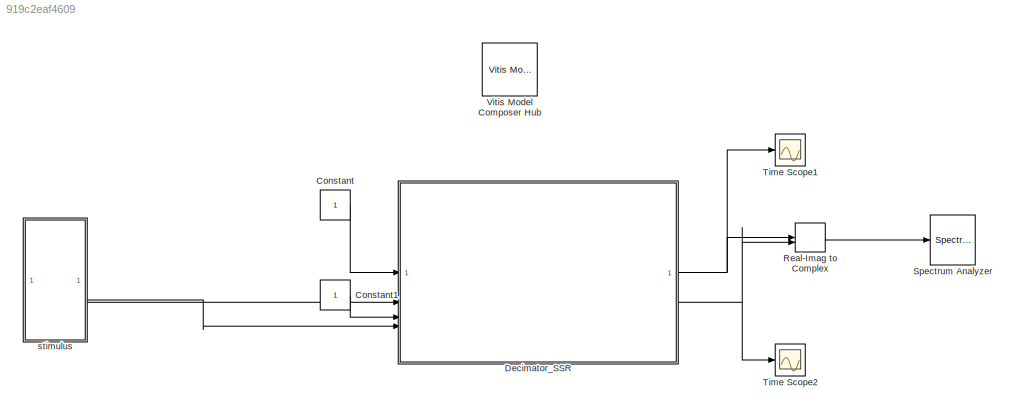
MODEL slx_919c2eaf4609
KIND model
CONFIG AbsTol = auto
CONFIG EnableMultiTasking = off
CONFIG FixedStep = auto
CONFIG MaxStep = auto
CONFIG MinStep = auto
CONFIG PreLoadFcn = startup
CONFIG RelTol = 1e-3
CONFIG SampleTimeConstraint = Unconstrained
CONFIG SolverName = VariableStepAuto
CONFIG StartTime = 0.0
CONFIG StopTime = 6000*(1/Fclk)
BLOCK [Constant] Constant
BLOCK [Constant] Constant1
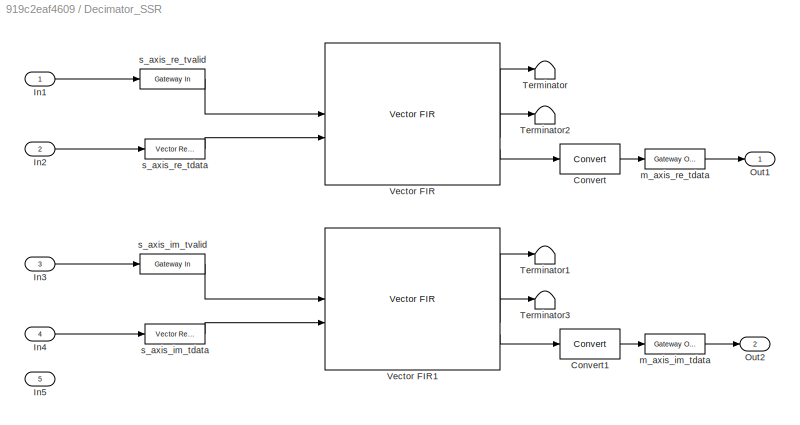
BLOCK [SubSystem] Decimator_SSR
  PortSchema = {"entries":[{"content":{"sides":[{"content":{"connectorIds":["In1","In2","In3","In4"]},"type":"ConnectorPlacement.EquallySpacedRectSide","uuid":"5b1ce47c-11b1-47c7-aaa3-19abd9a5b4e2"},{"content":{"connectorIds":["Out1","Out2"],"side":"RIGHT"},"type":"ConnectorPlacement.EquallySpacedRectSide","uuid":"3ee300bc-2b0e-4642-8b70-9f140d98776f"},{"content":{"connectorIds":["In5"],"side":"TOP"},"type":"Con...<+270ch>
BLOCK [Reference] Decimator_SSR/Convert  REF=hdlBasic/Convert
  SourceBlock = hdlBasic/Convert
  SourceType = Type Converter Block
BLOCK [Reference] Decimator_SSR/Convert1  REF=hdlBasic/Convert
  SourceBlock = hdlBasic/Convert
  SourceType = Type Converter Block
BLOCK [Inport] Decimator_SSR/In1
BLOCK [Inport] Decimator_SSR/In2
  Port = 2
BLOCK [Inport] Decimator_SSR/In3
  Port = 3
BLOCK [Inport] Decimator_SSR/In4
  Port = 4
BLOCK [Inport] Decimator_SSR/In5
  Port = 5
BLOCK [Outport] Decimator_SSR/Out1
BLOCK [Outport] Decimator_SSR/Out2
  Port = 2
BLOCK [Terminator] Decimator_SSR/Terminator
BLOCK [Terminator] Decimator_SSR/Terminator1
BLOCK [Terminator] Decimator_SSR/Terminator2
BLOCK [Terminator] Decimator_SSR/Terminator3
BLOCK [Reference] Decimator_SSR/Vector FIR  REF=hdlSSR/Vector FIR
  SourceBlock = hdlSSR/Vector FIR
  SourceType = Xilinx Vector FIR Compiler 7.2 Block
BLOCK [Reference] Decimator_SSR/Vector FIR1  REF=hdlSSR/Vector FIR
  SourceBlock = hdlSSR/Vector FIR
  SourceType = Xilinx Vector FIR Compiler 7.2 Block
BLOCK [Reference] Decimator_SSR/m_axis_im_tdata  REF=hdlBasic/Gateway Out
  SourceBlock = hdlBasic/Gateway Out
  SourceType = Gateway Out Block
BLOCK [Reference] Decimator_SSR/m_axis_re_tdata  REF=hdlBasic/Gateway Out
  SourceBlock = hdlBasic/Gateway Out
  SourceType = Gateway Out Block
BLOCK [Reference] Decimator_SSR/s_axis_im_tdata  REF=hdlSSR/Vector Real Gateway In
  SourceBlock = hdlSSR/Vector Real Gateway In
  SourceType = Xilinx Vector Gateway In Block
BLOCK [Reference] Decimator_SSR/s_axis_im_tvalid  REF=hdlBasic/Gateway In
  SourceBlock = hdlBasic/Gateway In
  SourceType = Gateway In Block
BLOCK [Reference] Decimator_SSR/s_axis_re_tdata  REF=hdlSSR/Vector Real Gateway In
  SourceBlock = hdlSSR/Vector Real Gateway In
  SourceType = Xilinx Vector Gateway In Block
BLOCK [Reference] Decimator_SSR/s_axis_re_tvalid  REF=hdlBasic/Gateway In
  SourceBlock = hdlBasic/Gateway In
  SourceType = Gateway In Block
BLOCK [RealImagToComplex] Real-Imag to Complex
BLOCK [SpectrumAnalyzer] Spectrum Analyzer
  GraphicalSettings = {"GraphicalSettings":{"Style":{"BackgroundColor":[0.12941176470588237,0.12941176470588237,0.12941176470588237],"AxesColor":[0.07058823529411765,0.07058823529411765,0.07058823529411765],"LabelsColor":[0.8509803921568627,0.8509803921568627,0.8509803921568627],"PreserveColors":false,"Visible":[true],"LineStyle":["-"],"LineColor":[[1,1,0.06666666666666667]],"LineWidth":[1.5],"Marker":["none"],"FontSiz...<+928ch>
  ScopeFrameLocation = window
  SelectedToolstripTab = spectrumAnalyzerToolstrip.measurementsTab
  WasSavedAsWebScope = on
  WindowPosition = [368.000000,182.000000,800.000000,500.000000,]
  YLimits = [-100.35206985,-15.45405044]
BLOCK [Scope] Time Scope1
  DefaultConfigurationName = spbscopes.TimeScopeBlockCfg
  Floating = off
  NumInputPorts = 1
  ScopeSpecificationString = spbscopes.TimeScopeBlockCfg('CurrentConfiguration', extmgr.ConfigurationSet(extmgr.Configuration('Core','General UI',true,'FigureColor',[0.156862745098039 0.156862745098039 0.156862745098039]),extmgr.Configuration('Core','Source UI',true),extmgr.Configuration('Sources','WiredSimulink',true),extmgr.Configuration('Visuals','Time Domain',true,'DisplayPropertyDefaults',struct('MinYLimReal','-0.2754','...<+1501ch>
  UserDataPersistent = on
BLOCK [Scope] Time Scope2
  DefaultConfigurationName = spbscopes.TimeScopeBlockCfg
  Floating = off
  NumInputPorts = 1
  ScopeSpecificationString = spbscopes.TimeScopeBlockCfg('CurrentConfiguration', extmgr.ConfigurationSet(extmgr.Configuration('Core','General UI',true,'FigureColor',[0.156862745098039 0.156862745098039 0.156862745098039]),extmgr.Configuration('Core','Source UI',true),extmgr.Configuration('Sources','WiredSimulink',true,'DataLoggingVariableName','ScopeData2'),extmgr.Configuration('Visuals','Time Domain',true,'DisplayPropertyDef...<+1544ch>
  UserDataPersistent = on
BLOCK [Reference] Vitis Model Composer Hub  REF=vmcUtilities/Vitis Model Composer Hub
  SourceBlock = vmcUtilities/Vitis Model Composer Hub
  SourceType = VMC Hub
  Tag = genX
  UserDataPersistent = on
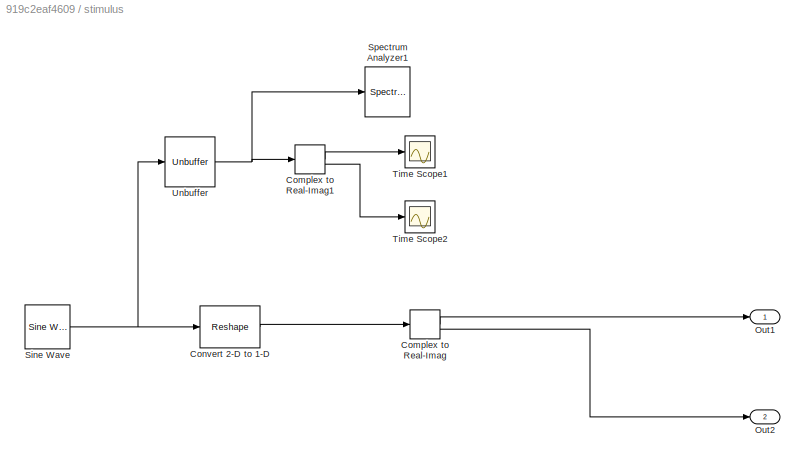
BLOCK [SubSystem] stimulus
BLOCK [ComplexToRealImag] stimulus/Complex to Real-Imag
BLOCK [ComplexToRealImag] stimulus/Complex to Real-Imag1
BLOCK [Reshape] stimulus/Convert 2-D to 1-D
BLOCK [Outport] stimulus/Out1
BLOCK [Outport] stimulus/Out2
  Port = 2
BLOCK [Reference] stimulus/Sine Wave  REF=dspsrcs4/Sine Wave
  LibrarySourceBlock = dsphdlsupportsrcs/Sine Wave
  SourceBlock = dspsrcs4/Sine Wave
  SourceType = Sine Wave
BLOCK [SpectrumAnalyzer] stimulus/Spectrum Analyzer1
  GraphicalSettings = {"GraphicalSettings":{"Style":{"BackgroundColor":[0.12941176470588237,0.12941176470588237,0.12941176470588237],"AxesColor":[0.07058823529411765,0.07058823529411765,0.07058823529411765],"LabelsColor":[0.8509803921568627,0.8509803921568627,0.8509803921568627],"PreserveColors":false,"Visible":[true],"LineStyle":["-"],"LineColor":[[1,1,0.06666666666666667]],"LineWidth":[1.5],"Marker":["none"],"FontSiz...<+929ch>
  ScopeFrameLocation = window
  WasSavedAsWebScope = on
  WindowPosition = [368.000000,182.000000,800.000000,500.000000,]
  YLimits = [-76.70327565,40.8002869]
BLOCK [Scope] stimulus/Time Scope1
  DefaultConfigurationName = spbscopes.TimeScopeBlockCfg
  Floating = off
  NumInputPorts = 1
  ScopeSpecificationString = spbscopes.TimeScopeBlockCfg('CurrentConfiguration', extmgr.ConfigurationSet(extmgr.Configuration('Core','General UI',true,'FigureColor',[0.156862745098039 0.156862745098039 0.156862745098039]),extmgr.Configuration('Core','Source UI',true),extmgr.Configuration('Sources','WiredSimulink',true,'DataLoggingVariableName','ScopeData1'),extmgr.Configuration('Visuals','Time Domain',true,'DisplayPropertyDef...<+1540ch>
  UserDataPersistent = on
BLOCK [Scope] stimulus/Time Scope2
  DefaultConfigurationName = spbscopes.TimeScopeBlockCfg
  Floating = off
  NumInputPorts = 1
  ScopeSpecificationString = spbscopes.TimeScopeBlockCfg('CurrentConfiguration', extmgr.ConfigurationSet(extmgr.Configuration('Core','General UI',true,'FigureColor',[0.156862745098039 0.156862745098039 0.156862745098039]),extmgr.Configuration('Core','Source UI',true),extmgr.Configuration('Sources','WiredSimulink',true,'DataLoggingVariableName','ScopeData3'),extmgr.Configuration('Visuals','Time Domain',true,'DisplayPropertyDef...<+1540ch>
  UserDataPersistent = on
BLOCK [Unbuffer] stimulus/Unbuffer
LINE Constant1:1 -> Decimator_SSR:3
LINE Constant:1 -> Decimator_SSR:1
LINE Decimator_SSR/Convert1:1 -> Decimator_SSR/m_axis_im_tdata:1
LINE Decimator_SSR/Convert:1 -> Decimator_SSR/m_axis_re_tdata:1
LINE Decimator_SSR/In1:1 -> Decimator_SSR/s_axis_re_tvalid:1
LINE Decimator_SSR/In2:1 -> Decimator_SSR/s_axis_re_tdata:1
LINE Decimator_SSR/In3:1 -> Decimator_SSR/s_axis_im_tvalid:1
LINE Decimator_SSR/In4:1 -> Decimator_SSR/s_axis_im_tdata:1
LINE Decimator_SSR/Vector FIR1:1 -> Decimator_SSR/Terminator1:1
LINE Decimator_SSR/Vector FIR1:2 -> Decimator_SSR/Terminator3:1
LINE Decimator_SSR/Vector FIR1:3 -> Decimator_SSR/Convert1:1
LINE Decimator_SSR/Vector FIR:1 -> Decimator_SSR/Terminator:1
LINE Decimator_SSR/Vector FIR:2 -> Decimator_SSR/Terminator2:1
LINE Decimator_SSR/Vector FIR:3 -> Decimator_SSR/Convert:1
LINE Decimator_SSR/m_axis_im_tdata:1 -> Decimator_SSR/Out2:1
LINE Decimator_SSR/m_axis_re_tdata:1 -> Decimator_SSR/Out1:1
LINE Decimator_SSR/s_axis_im_tdata:1 -> Decimator_SSR/Vector FIR1:2
LINE Decimator_SSR/s_axis_im_tvalid:1 -> Decimator_SSR/Vector FIR1:1
LINE Decimator_SSR/s_axis_re_tdata:1 -> Decimator_SSR/Vector FIR:2
LINE Decimator_SSR/s_axis_re_tvalid:1 -> Decimator_SSR/Vector FIR:1
NET Decimator_SSR:1 -> Real-Imag to Complex:1, Time Scope1:1
NET Decimator_SSR:2 -> Real-Imag to Complex:2, Time Scope2:1
LINE Real-Imag to Complex:1 -> Spectrum Analyzer:1
LINE stimulus/Complex to Real-Imag1:1 -> stimulus/Time Scope1:1
LINE stimulus/Complex to Real-Imag1:2 -> stimulus/Time Scope2:1
LINE stimulus/Complex to Real-Imag:1 -> stimulus/Out1:1
LINE stimulus/Complex to Real-Imag:2 -> stimulus/Out2:1
LINE stimulus/Convert 2-D to 1-D:1 -> stimulus/Complex to Real-Imag:1
NET stimulus/Sine Wave:1 -> stimulus/Convert 2-D to 1-D:1, stimulus/Unbuffer:1
NET stimulus/Unbuffer:1 -> stimulus/Complex to Real-Imag1:1, stimulus/Spectrum Analyzer1:1
LINE stimulus:1 -> Decimator_SSR:2
LINE stimulus:2 -> Decimator_SSR:4
note: NET lines group one-source signal fan-out (src -> all destinations, sorted); 1:1 wires keep LINE
